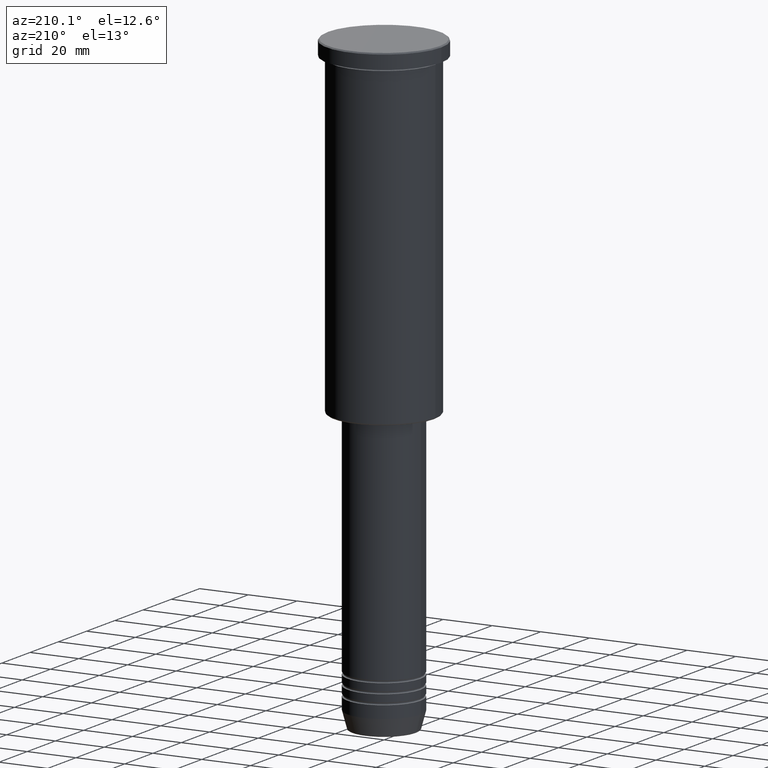
[diagram: clean part render]
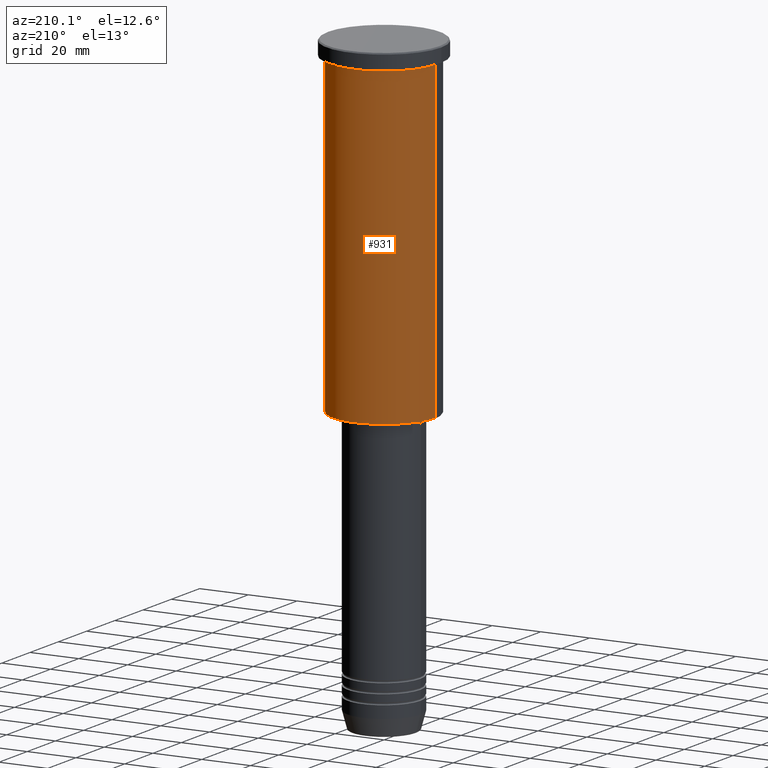
[diagram: same view with one face highlighted and labeled with its STEP entity id]
A machine part, auxiliary view. The second image highlights one B-rep face of the part: STEP entity #931.
In plain terms, the highlighted cylindrical surface (partial cylindrical patch) has radius 21 mm, axis along (-0, -0, 1).
Its self-contained STEP definition (entity closure, byte-faithful):
#58 = FACE_OUTER_BOUND ( 'NONE', #628, .T. ) ;
#75 = DIRECTION ( 'NONE',  ( -0.000000000000000000, -0.000000000000000000, 1.000000000000000000 ) ) ;
#79 = LINE ( 'NONE', #827, #235 ) ;
#88 = ORIENTED_EDGE ( 'NONE', *, *, #1067, .T. ) ;
#156 = ORIENTED_EDGE ( 'NONE', *, *, #554, .F. ) ;
#180 = CARTESIAN_POINT ( 'NONE',  ( 0.000000000000000000, 0.000000000000000000, -135.5000000000000000 ) ) ;
#211 = CARTESIAN_POINT ( 'NONE',  ( 21.00000000000000000, 0.000000000000000000, -135.5000000000000000 ) ) ;
#235 = VECTOR ( 'NONE', #75, 1000.000000000000000 ) ;
#253 = EDGE_CURVE ( 'NONE', #1022, #529, #79, .T. ) ;
#273 = DIRECTION ( 'NONE',  ( -1.000000000000000000, 0.000000000000000000, 0.000000000000000000 ) ) ;
#342 = CARTESIAN_POINT ( 'NONE',  ( 0.000000000000000000, 0.000000000000000000, 0.000000000000000000 ) ) ;
#356 = VERTEX_POINT ( 'NONE', #211 ) ;
#361 = CARTESIAN_POINT ( 'NONE',  ( 21.00000000000000000, 0.000000000000000000, -6.999999999999993783 ) ) ;
#395 = VECTOR ( 'NONE', #1154, 1000.000000000000000 ) ;
#425 = CYLINDRICAL_SURFACE ( 'NONE', #642, 21.00000000000000000 ) ;
#529 = VERTEX_POINT ( 'NONE', #1059 ) ;
#535 = DIRECTION ( 'NONE',  ( 1.000000000000000000, 0.000000000000000000, 0.000000000000000000 ) ) ;
#539 = CIRCLE ( 'NONE', #976, 21.00000000000000000 ) ;
#554 = EDGE_CURVE ( 'NONE', #356, #1170, #1077, .T. ) ;
#583 = ORIENTED_EDGE ( 'NONE', *, *, #616, .F. ) ;
#616 = EDGE_CURVE ( 'NONE', #1170, #529, #626, .T. ) ;
#626 = CIRCLE ( 'NONE', #1078, 21.00000000000000000 ) ;
#628 = EDGE_LOOP ( 'NONE', ( #88, #653, #583, #156 ) ) ;
#642 = AXIS2_PLACEMENT_3D ( 'NONE', #342, #1157, #535 ) ;
#653 = ORIENTED_EDGE ( 'NONE', *, *, #253, .T. ) ;
#827 = CARTESIAN_POINT ( 'NONE',  ( -21.00000000000000000, 2.571758278209441661E-15, 0.000000000000000000 ) ) ;
#836 = CARTESIAN_POINT ( 'NONE',  ( 0.000000000000000000, 0.000000000000000000, -6.999999999999993783 ) ) ;
#912 = CARTESIAN_POINT ( 'NONE',  ( 21.00000000000000000, 0.000000000000000000, 0.000000000000000000 ) ) ;
#931 = ADVANCED_FACE ( 'NONE', ( #58 ), #425, .T. ) ;
#944 = DIRECTION ( 'NONE',  ( 1.000000000000000000, 0.000000000000000000, 0.000000000000000000 ) ) ;
#976 = AXIS2_PLACEMENT_3D ( 'NONE', #180, #1015, #273 ) ;
#1015 = DIRECTION ( 'NONE',  ( -0.000000000000000000, -0.000000000000000000, 1.000000000000000000 ) ) ;
#1022 = VERTEX_POINT ( 'NONE', #1167 ) ;
#1059 = CARTESIAN_POINT ( 'NONE',  ( -21.00000000000000000, 2.571758278209441661E-15, -6.999999999999993783 ) ) ;
#1067 = EDGE_CURVE ( 'NONE', #356, #1022, #539, .T. ) ;
#1077 = LINE ( 'NONE', #912, #395 ) ;
#1078 = AXIS2_PLACEMENT_3D ( 'NONE', #836, #1085, #944 ) ;
#1085 = DIRECTION ( 'NONE',  ( -0.000000000000000000, -0.000000000000000000, 1.000000000000000000 ) ) ;
#1154 = DIRECTION ( 'NONE',  ( -0.000000000000000000, -0.000000000000000000, 1.000000000000000000 ) ) ;
#1157 = DIRECTION ( 'NONE',  ( -0.000000000000000000, -0.000000000000000000, 1.000000000000000000 ) ) ;
#1167 = CARTESIAN_POINT ( 'NONE',  ( -21.00000000000000000, 2.571758278209441661E-15, -135.5000000000000000 ) ) ;
#1170 = VERTEX_POINT ( 'NONE', #361 ) ;